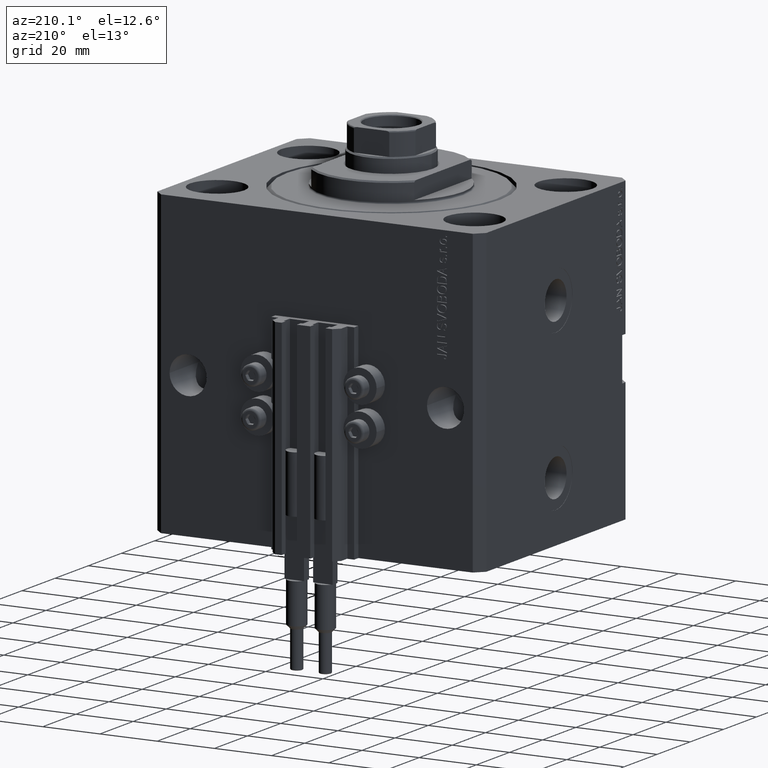
[diagram: clean part render]
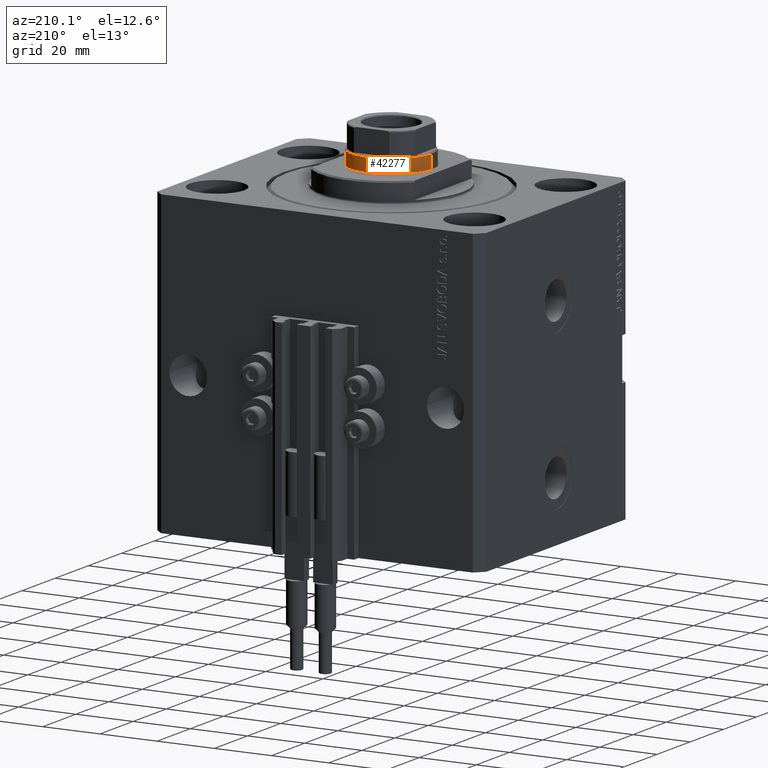
[diagram: same view with one face highlighted and labeled with its STEP entity id]
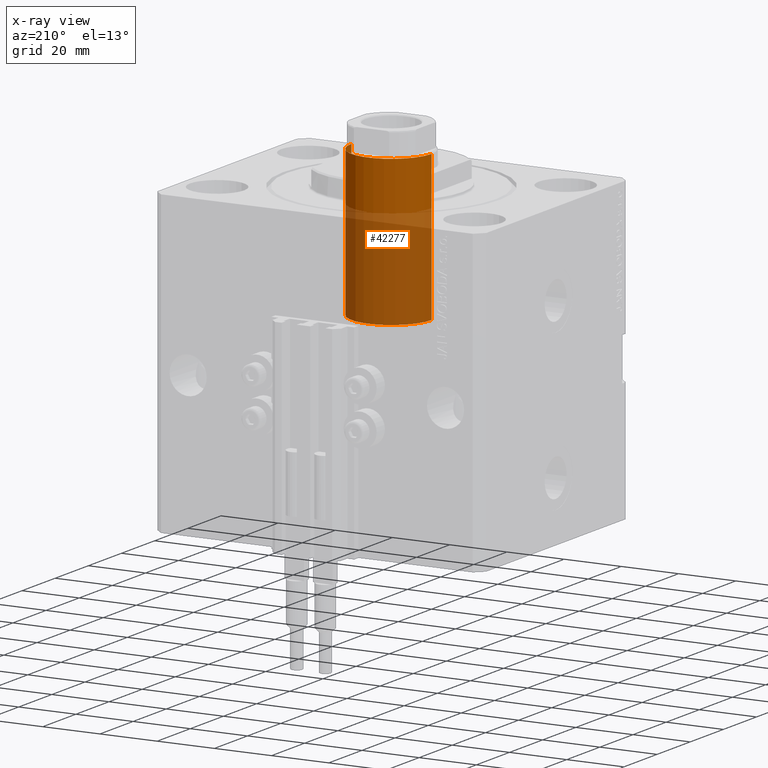
[diagram: x-ray of the same camera — body ghosted, the highlighted face saturated]
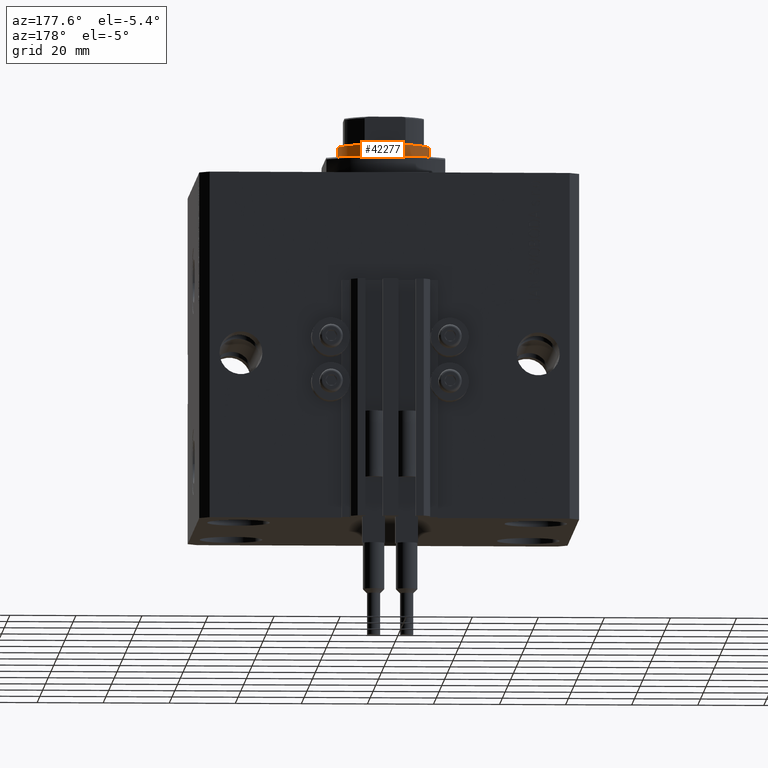
[diagram: same view with one face highlighted and labeled with its STEP entity id]
A machine part, auxiliary view. The second image highlights one B-rep face of the part: STEP entity #42277.
The next image is the same camera in x-ray: the body ghosted, the highlighted face saturated — about 67% of this face is hidden behind the body in this view.
A second angle (auxiliary view) of the same face is appended — the face is thin or edge-on in the first view.
In plain terms, the highlighted cylindrical surface (partial cylindrical patch) has radius 14 mm, axis along (-0, -0, -1).
Its self-contained STEP definition (entity closure, byte-faithful):
#943 = CIRCLE ( 'NONE', #23502, 14.00000000000000000 ) ;
#1271 = DIRECTION ( 'NONE',  ( -0.000000000000000000, -0.000000000000000000, -1.000000000000000000 ) ) ;
#1462 = DIRECTION ( 'NONE',  ( 0.000000000000000000, 0.000000000000000000, 1.000000000000000000 ) ) ;
#3466 = ORIENTED_EDGE ( 'NONE', *, *, #49866, .T. ) ;
#3996 = AXIS2_PLACEMENT_3D ( 'NONE', #44322, #22050, #45072 ) ;
#4875 = CARTESIAN_POINT ( 'NONE',  ( -14.00000000000000000, 0.000000000000000000, 99.09999999999999432 ) ) ;
#6263 = CARTESIAN_POINT ( 'NONE',  ( 14.00000000000000000, 1.714505518806294244E-15, 98.60000000000006537 ) ) ;
#8278 = VERTEX_POINT ( 'NONE', #18454 ) ;
#9864 = CARTESIAN_POINT ( 'NONE',  ( 14.00000000000000000, 1.714505518806294244E-15, 47.10000000000000142 ) ) ;
#13040 = ORIENTED_EDGE ( 'NONE', *, *, #44791, .T. ) ;
#14456 = DIRECTION ( 'NONE',  ( 1.000000000000000000, 0.000000000000000000, 0.000000000000000000 ) ) ;
#15172 = VERTEX_POINT ( 'NONE', #27944 ) ;
#16443 = CARTESIAN_POINT ( 'NONE',  ( 14.00000000000000000, 1.714505518806294244E-15, 99.09999999999999432 ) ) ;
#18454 = CARTESIAN_POINT ( 'NONE',  ( -14.00000000000000000, 0.000000000000000000, 47.10000000000000142 ) ) ;
#19004 = DIRECTION ( 'NONE',  ( 0.000000000000000000, 0.000000000000000000, -1.000000000000000000 ) ) ;
#22050 = DIRECTION ( 'NONE',  ( -0.000000000000000000, -0.000000000000000000, -1.000000000000000000 ) ) ;
#22298 = CARTESIAN_POINT ( 'NONE',  ( 0.000000000000000000, 0.000000000000000000, 98.60000000000006537 ) ) ;
#23502 = AXIS2_PLACEMENT_3D ( 'NONE', #22298, #19004, #14456 ) ;
#25599 = CYLINDRICAL_SURFACE ( 'NONE', #3996, 14.00000000000000000 ) ;
#26317 = EDGE_CURVE ( 'NONE', #15172, #8278, #39997, .T. ) ;
#26664 = AXIS2_PLACEMENT_3D ( 'NONE', #48728, #1462, #32310 ) ;
#27944 = CARTESIAN_POINT ( 'NONE',  ( -14.00000000000000000, 0.000000000000000000, 98.60000000000006537 ) ) ;
#29705 = VERTEX_POINT ( 'NONE', #6263 ) ;
#30137 = VERTEX_POINT ( 'NONE', #9864 ) ;
#31677 = DIRECTION ( 'NONE',  ( -0.000000000000000000, -0.000000000000000000, -1.000000000000000000 ) ) ;
#32310 = DIRECTION ( 'NONE',  ( 1.000000000000000000, 0.000000000000000000, 0.000000000000000000 ) ) ;
#35800 = ORIENTED_EDGE ( 'NONE', *, *, #46143, .T. ) ;
#36972 = FACE_OUTER_BOUND ( 'NONE', #47933, .T. ) ;
#38934 = LINE ( 'NONE', #16443, #43528 ) ;
#39997 = LINE ( 'NONE', #4875, #48773 ) ;
#42277 = ADVANCED_FACE ( 'NONE', ( #36972 ), #25599, .T. ) ;
#42306 = ORIENTED_EDGE ( 'NONE', *, *, #26317, .F. ) ;
#43528 = VECTOR ( 'NONE', #1271, 1000.000000000000000 ) ;
#43560 = CIRCLE ( 'NONE', #26664, 14.00000000000000000 ) ;
#44322 = CARTESIAN_POINT ( 'NONE',  ( 0.000000000000000000, 0.000000000000000000, 99.09999999999999432 ) ) ;
#44791 = EDGE_CURVE ( 'NONE', #29705, #30137, #38934, .T. ) ;
#45072 = DIRECTION ( 'NONE',  ( -1.000000000000000000, 0.000000000000000000, 0.000000000000000000 ) ) ;
#46143 = EDGE_CURVE ( 'NONE', #30137, #8278, #43560, .T. ) ;
#47933 = EDGE_LOOP ( 'NONE', ( #3466, #13040, #35800, #42306 ) ) ;
#48728 = CARTESIAN_POINT ( 'NONE',  ( 0.000000000000000000, 0.000000000000000000, 47.10000000000000142 ) ) ;
#48773 = VECTOR ( 'NONE', #31677, 1000.000000000000000 ) ;
#49866 = EDGE_CURVE ( 'NONE', #15172, #29705, #943, .T. ) ;